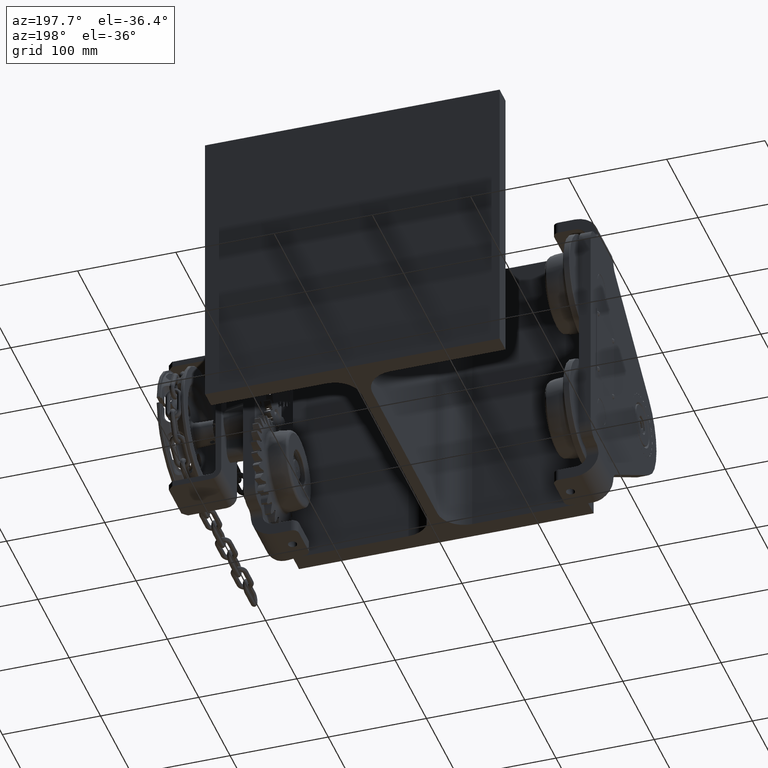
[diagram: clean part render]
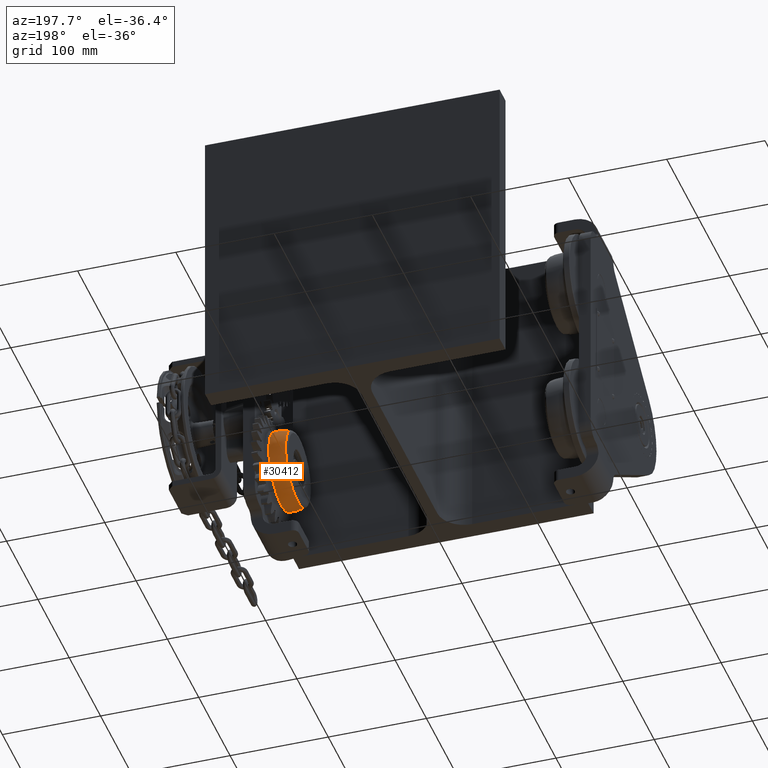
[diagram: same view with one face highlighted and labeled with its STEP entity id]
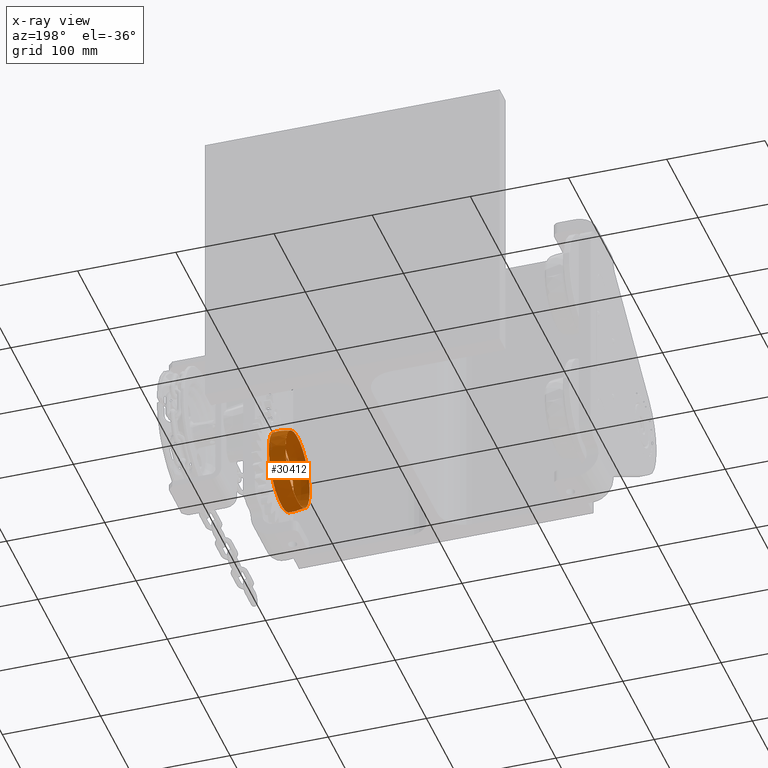
[diagram: x-ray of the same camera — body ghosted, the highlighted face saturated]
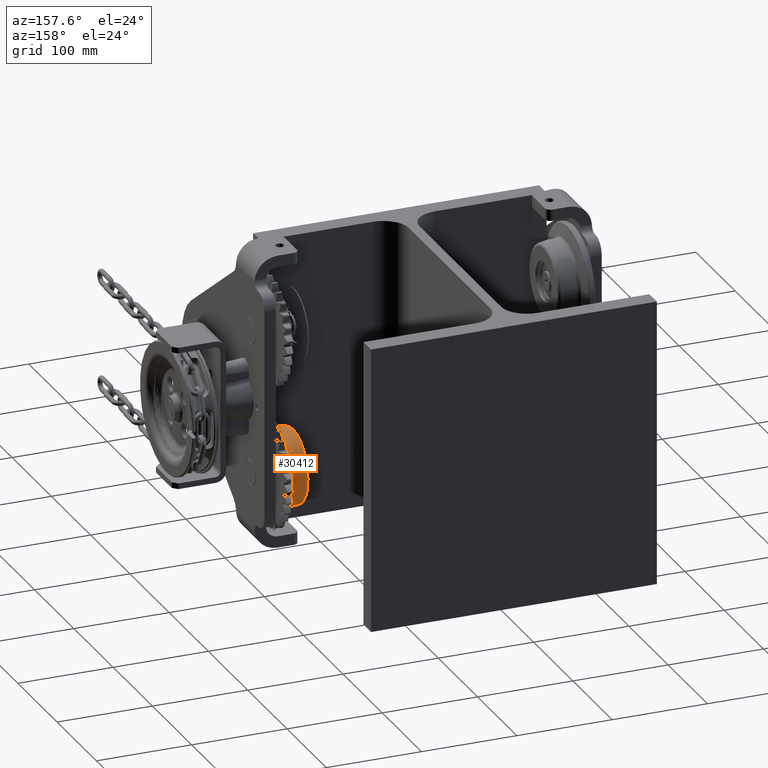
[diagram: same view with one face highlighted and labeled with its STEP entity id]
A machine part, auxiliary view. The second image highlights one B-rep face of the part: STEP entity #30412.
The next image is the same camera in x-ray: the body ghosted, the highlighted face saturated — about 0% of this face is hidden behind the body in this view.
A second angle (auxiliary view) of the same face is appended — the face is thin or edge-on in the first view.
In plain terms, the highlighted spherical surface has radius 40 mm.
Its self-contained STEP definition (entity closure, byte-faithful):
#1837 = VERTEX_POINT ( 'NONE', #2860 ) ;
#2260 = AXIS2_PLACEMENT_3D ( 'NONE', #7541, #3340, #51373 ) ;
#2860 = CARTESIAN_POINT ( 'NONE',  ( 149.2677432508272400, -119.5108842272176400, -102.5568568894488800 ) ) ;
#3340 = DIRECTION ( 'NONE',  ( 1.000000000000000000, 6.843404487901493500E-033, 2.008751123324230400E-032 ) ) ;
#5715 = FACE_OUTER_BOUND ( 'NONE', #40386, .T. ) ;
#7541 = CARTESIAN_POINT ( 'NONE',  ( 132.6486486486492100, -90.99999999999991500, -75.00000000000017100 ) ) ;
#14504 = SPHERICAL_SURFACE ( 'NONE', #29968, 39.99999999999999300 ) ;
#15472 = AXIS2_PLACEMENT_3D ( 'NONE', #39074, #35093, #39450 ) ;
#19842 = EDGE_LOOP ( 'NONE', ( #54562 ) ) ;
#20993 = EDGE_CURVE ( 'NONE', #1837, #1837, #29971, .T. ) ;
#26975 = CARTESIAN_POINT ( 'NONE',  ( 144.0000000000005700, -90.99999999999991500, -75.00000000000017100 ) ) ;
#29778 = EDGE_CURVE ( 'NONE', #46533, #46533, #41824, .T. ) ;
#29968 = AXIS2_PLACEMENT_3D ( 'NONE', #26975, #49181, #53377 ) ;
#29971 = CIRCLE ( 'NONE', #15472, 39.65161889561849800 ) ;
#30412 = ADVANCED_FACE ( 'NONE', ( #40298, #5715 ), #14504, .T. ) ;
#35093 = DIRECTION ( 'NONE',  ( 1.000000000000000000, 6.843404487901493500E-033, 2.008751123324230400E-032 ) ) ;
#38128 = CARTESIAN_POINT ( 'NONE',  ( 132.6486486486492100, -118.5789528431726300, -101.6561096668707100 ) ) ;
#39074 = CARTESIAN_POINT ( 'NONE',  ( 149.2677432508272400, -90.99999999999991500, -75.00000000000017100 ) ) ;
#39450 = DIRECTION ( 'NONE',  ( 0.0000000000000000000, -0.7190345570069065500, -0.6949743202664985200 ) ) ;
#40298 = FACE_OUTER_BOUND ( 'NONE', #19842, .T. ) ;
#40386 = EDGE_LOOP ( 'NONE', ( #51348 ) ) ;
#41824 = CIRCLE ( 'NONE', #2260, 38.35553183698765200 ) ;
#46533 = VERTEX_POINT ( 'NONE', #38128 ) ;
#49181 = DIRECTION ( 'NONE',  ( -1.888094877954555100E-032, 0.7190345570069065500, 0.6949743202664986400 ) ) ;
#51348 = ORIENTED_EDGE ( 'NONE', *, *, #29778, .T. ) ;
#51373 = DIRECTION ( 'NONE',  ( 0.0000000000000000000, -0.7190345570069065500, -0.6949743202664986400 ) ) ;
#53377 = DIRECTION ( 'NONE',  ( 0.0000000000000000000, 0.6949743202664985200, -0.7190345570069064400 ) ) ;
#54562 = ORIENTED_EDGE ( 'NONE', *, *, #20993, .F. ) ;